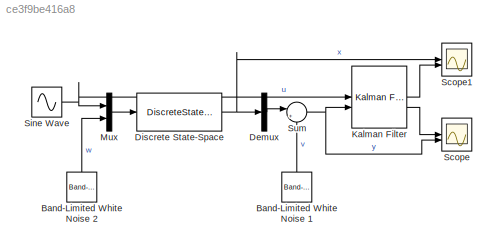
MODEL slx_ce3f9be416a8
KIND model
CONFIG AbsTol = auto
CONFIG EnableMultiTasking = off
CONFIG FixedStep = auto
CONFIG InitFcn = A = diag([-1,-2,-3]);\nB = [1;-1;1];\nC = [0,1,0];\nD = 0;\nDISC = c2d(ss(A,B,C,D),0.01);\nA = DISC.a;\nB = DISC.b;
CONFIG MaxStep = auto
CONFIG MinStep = auto
CONFIG RelTol = 1e-3
CONFIG SampleTimeConstraint = Unconstrained
CONFIG SolverName = VariableStepAuto
CONFIG StartTime = 0.0
CONFIG StopTime = 15
BLOCK [Reference] Band-Limited White Noise 1  REF=simulink/Sources/Band-Limited
White Noise
  NameLocation = right
  SourceBlock = simulink/Sources/Band-Limited\nWhite Noise
  SourceType = Band-Limited White Noise.
BLOCK [Reference] Band-Limited White Noise 2  REF=simulink/Sources/Band-Limited
White Noise
  NameLocation = right
  SourceBlock = simulink/Sources/Band-Limited\nWhite Noise
  SourceType = Band-Limited White Noise.
BLOCK [Demux] Demux
  Outputs = 3
BLOCK [DiscreteStateSpace] Discrete State-Space
  A = A
  B = [B eye(3)]
  C = eye(3)
  D = zeros(3,4)
  SampleTime = 0.01
BLOCK [Reference] Kalman Filter  REF=ctrlSharedLib/Kalman Filter
  LibrarySourceBlock = cstblocks/State Estimation/Kalman Filter
  SourceBlock = ctrlSharedLib/Kalman Filter
  SourceType = ctrlKalmanFilter
BLOCK [Mux] Mux
  DisplayOption = bar
  Inputs = 2
BLOCK [Scope] Scope
  Floating = off
  NumInputPorts = 2
  ScopeSpecificationString = Simulink.scopes.TimeScopeBlockCfg('CurrentConfiguration', extmgr.ConfigurationSet(extmgr.Configuration('Core','General UI',true),extmgr.Configuration('Core','Source UI',true),extmgr.Configuration('Sources','WiredSimulink',true),extmgr.Configuration('Visuals','Time Domain',true,'SerializedDisplays',{struct('MinYLimReal','-3.04491','MaxYLimReal','3.07953','YLabelReal','','MinYLimMag','0.00000','MaxY...<+1375ch>
BLOCK [Scope] Scope1
  Floating = off
  NumInputPorts = 2
  ScopeSpecificationString = Simulink.scopes.TimeScopeBlockCfg('CurrentConfiguration', extmgr.ConfigurationSet(extmgr.Configuration('Core','General UI',true),extmgr.Configuration('Core','Source UI',true),extmgr.Configuration('Sources','WiredSimulink',true,'DataLoggingVariableName','ScopeData1'),extmgr.Configuration('Visuals','Time Domain',true,'SerializedDisplays',{struct('MinYLimReal','-4.46688','MaxYLimReal','4.7314','YLabe...<+1468ch>
BLOCK [Sin] Sine Wave
  Amplitude = 5
  SampleTime = 0.01
BLOCK [Sum] Sum
  Inputs = |++
LINE Band-Limited White Noise 1:1 -> Sum:2
LINE Band-Limited White Noise 2:1 -> Mux:2
LINE Demux:2 -> Sum:1
NET Discrete State-Space:1 -> Demux:1, Scope1:1
LINE Kalman Filter:1 -> Scope1:2
LINE Kalman Filter:2 -> Scope:1
LINE Mux:1 -> Discrete State-Space:1
NET Sine Wave:1 -> Kalman Filter:1, Mux:1
NET Sum:1 -> Kalman Filter:2, Scope:2
note: NET lines group one-source signal fan-out (src -> all destinations, sorted); 1:1 wires keep LINE
